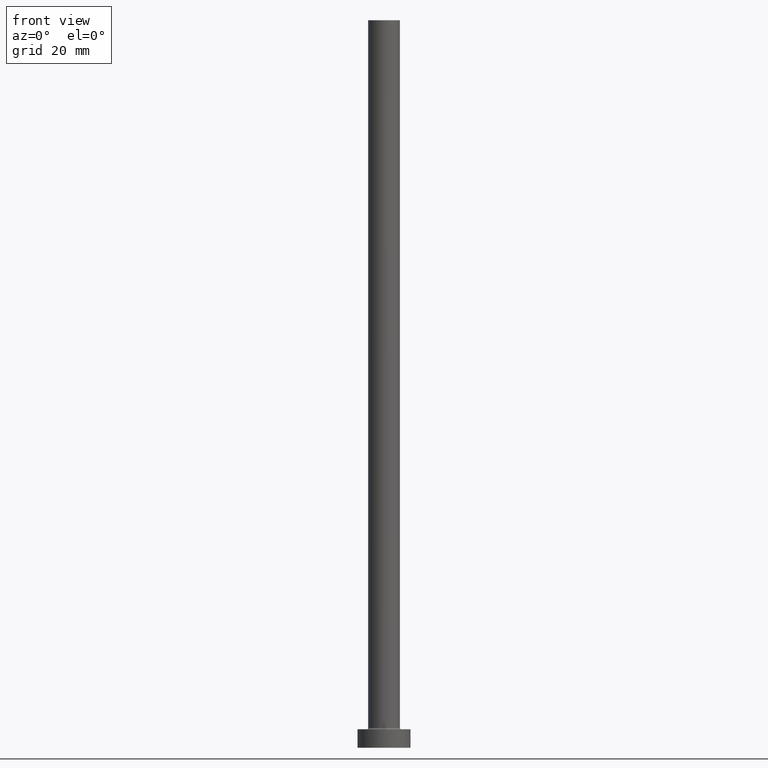
[diagram: clean part render]
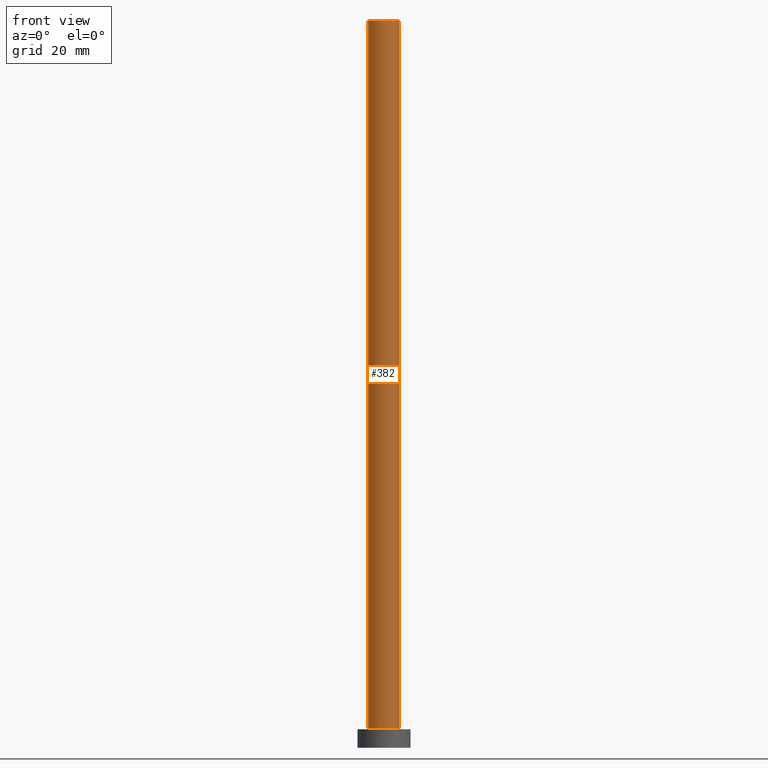
[diagram: same view with one face highlighted and labeled with its STEP entity id]
A machine part, front view. The second image highlights one B-rep face of the part: STEP entity #382.
In plain terms, the highlighted cylindrical surface (edge-blend (fillet) strip) has radius 6 mm, axis along (-0, -0, -1).
Its self-contained STEP definition (entity closure, byte-faithful):
#7 = ORIENTED_EDGE ( 'NONE', *, *, #192, .F. ) ;
#19 = DIRECTION ( 'NONE',  ( -0.000000000000000000, -0.000000000000000000, -1.000000000000000000 ) ) ;
#21 = CARTESIAN_POINT ( 'NONE',  ( 0.000000000000000000, 0.000000000000000000, 275.0000000000000000 ) ) ;
#28 = CARTESIAN_POINT ( 'NONE',  ( 0.000000000000000000, 0.000000000000000000, 7.500000000000007105 ) ) ;
#59 = CYLINDRICAL_SURFACE ( 'NONE', #120, 6.000000000000000888 ) ;
#90 = CIRCLE ( 'NONE', #274, 6.000000000000000888 ) ;
#94 = CARTESIAN_POINT ( 'NONE',  ( -6.000000000000000888, 0.000000000000000000, 7.500000000000007105 ) ) ;
#99 = DIRECTION ( 'NONE',  ( -1.000000000000000000, 0.000000000000000000, 0.000000000000000000 ) ) ;
#102 = CARTESIAN_POINT ( 'NONE',  ( 6.000000000000000888, 7.347880794884120722E-16, 275.0000000000000000 ) ) ;
#114 = CARTESIAN_POINT ( 'NONE',  ( 0.000000000000000000, 0.000000000000000000, 275.0000000000000000 ) ) ;
#119 = VECTOR ( 'NONE', #123, 1000.000000000000000 ) ;
#120 = AXIS2_PLACEMENT_3D ( 'NONE', #21, #19, #99 ) ;
#123 = DIRECTION ( 'NONE',  ( -0.000000000000000000, -0.000000000000000000, -1.000000000000000000 ) ) ;
#148 = EDGE_CURVE ( 'NONE', #266, #333, #262, .T. ) ;
#192 = EDGE_CURVE ( 'NONE', #266, #278, #90, .T. ) ;
#216 = DIRECTION ( 'NONE',  ( 0.000000000000000000, 0.000000000000000000, 1.000000000000000000 ) ) ;
#249 = EDGE_CURVE ( 'NONE', #333, #393, #446, .T. ) ;
#261 = ORIENTED_EDGE ( 'NONE', *, *, #390, .F. ) ;
#262 = LINE ( 'NONE', #362, #119 ) ;
#265 = DIRECTION ( 'NONE',  ( 0.000000000000000000, 0.000000000000000000, 1.000000000000000000 ) ) ;
#266 = VERTEX_POINT ( 'NONE', #280 ) ;
#271 = LINE ( 'NONE', #379, #338 ) ;
#274 = AXIS2_PLACEMENT_3D ( 'NONE', #114, #216, #294 ) ;
#278 = VERTEX_POINT ( 'NONE', #102 ) ;
#280 = CARTESIAN_POINT ( 'NONE',  ( -6.000000000000000888, 0.000000000000000000, 275.0000000000000000 ) ) ;
#293 = ORIENTED_EDGE ( 'NONE', *, *, #249, .T. ) ;
#294 = DIRECTION ( 'NONE',  ( 1.000000000000000000, 0.000000000000000000, 0.000000000000000000 ) ) ;
#305 = DIRECTION ( 'NONE',  ( -0.000000000000000000, -0.000000000000000000, -1.000000000000000000 ) ) ;
#333 = VERTEX_POINT ( 'NONE', #94 ) ;
#338 = VECTOR ( 'NONE', #305, 1000.000000000000000 ) ;
#345 = CARTESIAN_POINT ( 'NONE',  ( 6.000000000000000888, 7.347880794884120722E-16, 7.500000000000007105 ) ) ;
#362 = CARTESIAN_POINT ( 'NONE',  ( -6.000000000000000888, 0.000000000000000000, 275.0000000000000000 ) ) ;
#376 = ORIENTED_EDGE ( 'NONE', *, *, #148, .T. ) ;
#379 = CARTESIAN_POINT ( 'NONE',  ( 6.000000000000000888, 7.347880794884120722E-16, 275.0000000000000000 ) ) ;
#382 = ADVANCED_FACE ( 'NONE', ( #415 ), #59, .T. ) ;
#390 = EDGE_CURVE ( 'NONE', #278, #393, #271, .T. ) ;
#393 = VERTEX_POINT ( 'NONE', #345 ) ;
#395 = AXIS2_PLACEMENT_3D ( 'NONE', #28, #265, #441 ) ;
#415 = FACE_OUTER_BOUND ( 'NONE', #456, .T. ) ;
#441 = DIRECTION ( 'NONE',  ( 1.000000000000000000, 0.000000000000000000, 0.000000000000000000 ) ) ;
#446 = CIRCLE ( 'NONE', #395, 6.000000000000000888 ) ;
#456 = EDGE_LOOP ( 'NONE', ( #261, #7, #376, #293 ) ) ;